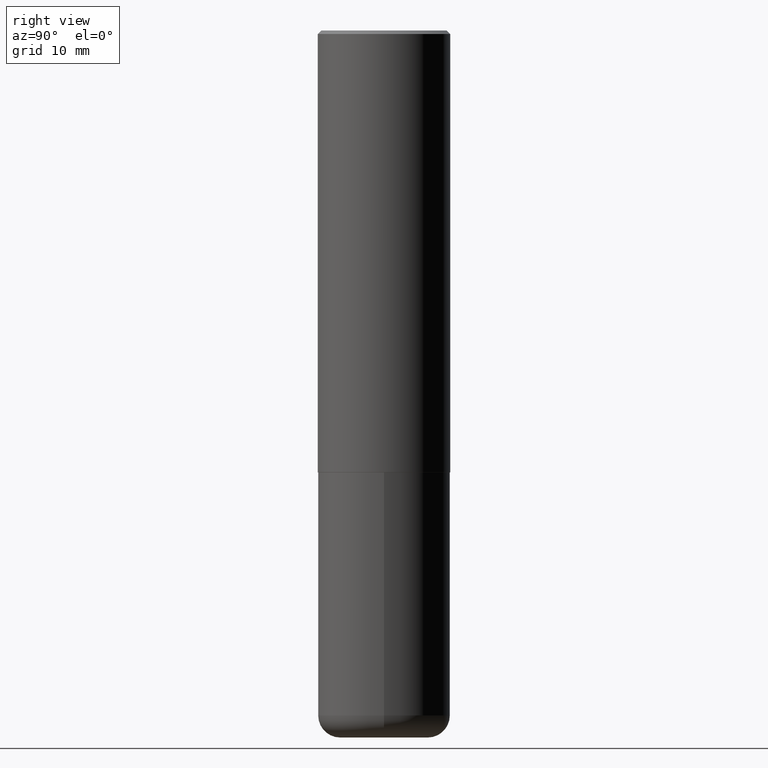
[diagram: clean part render]
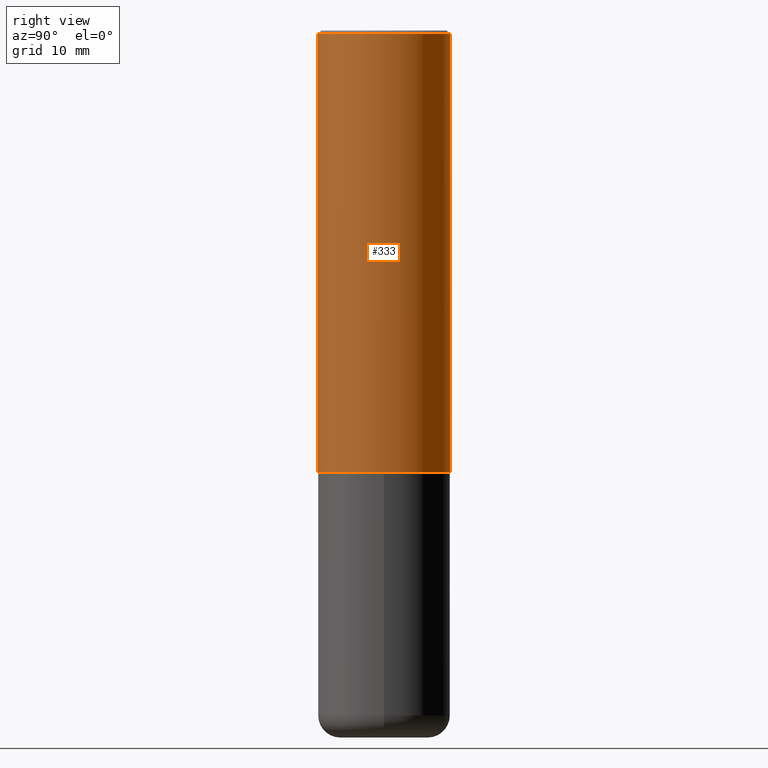
[diagram: same view with one face highlighted and labeled with its STEP entity id]
A machine part, right view. The second image highlights one B-rep face of the part: STEP entity #333.
In plain terms, the highlighted cylindrical surface (partial cylindrical patch) has radius 9.525 mm, axis along (-0, 0, 1).
Its self-contained STEP definition (entity closure, byte-faithful):
#14 = EDGE_CURVE ( 'NONE', #279, #78, #354, .T. ) ;
#23 = DIRECTION ( 'NONE',  ( -6.982962677686265922E-15, -1.000000000000000000, 3.494488891895536035E-15 ) ) ;
#33 = LINE ( 'NONE', #97, #44 ) ;
#44 = VECTOR ( 'NONE', #369, 39.37007874015748143 ) ;
#48 = VERTEX_POINT ( 'NONE', #91 ) ;
#54 = ORIENTED_EDGE ( 'NONE', *, *, #14, .T. ) ;
#61 = DIRECTION ( 'NONE',  ( -2.446218909101186334E-29, 3.490407148774155485E-15, 1.000000000000000000 ) ) ;
#62 = AXIS2_PLACEMENT_3D ( 'NONE', #180, #83, #382 ) ;
#63 = FACE_OUTER_BOUND ( 'NONE', #195, .T. ) ;
#72 = CARTESIAN_POINT ( 'NONE',  ( -2.618611004132290852E-15, -0.3750000000000090483, -2.498999999999998778 ) ) ;
#78 = VERTEX_POINT ( 'NONE', #150 ) ;
#83 = DIRECTION ( 'NONE',  ( -2.446218909101186334E-29, 3.490407148774155485E-15, 1.000000000000000000 ) ) ;
#91 = CARTESIAN_POINT ( 'NONE',  ( 2.618611004132350411E-15, 0.3749999999999999445, -0.02000000000000139513 ) ) ;
#97 = CARTESIAN_POINT ( 'NONE',  ( -2.618611004132351200E-15, -0.3750000000000001665, 1.308902680790308800E-15 ) ) ;
#103 = EDGE_CURVE ( 'NONE', #208, #48, #387, .T. ) ;
#132 = CARTESIAN_POINT ( 'NONE',  ( 2.664535259100376486E-15, 0.3750000000000001665, -1.308902680790308800E-15 ) ) ;
#137 = CARTESIAN_POINT ( 'NONE',  ( 4.892437818202393302E-31, -6.980814297548341687E-17, -0.02000000000000008715 ) ) ;
#150 = CARTESIAN_POINT ( 'NONE',  ( 2.664535259100408040E-15, 0.3749999999999915623, -2.499000000000000998 ) ) ;
#165 = LINE ( 'NONE', #132, #398 ) ;
#174 = CARTESIAN_POINT ( 'NONE',  ( -2.572686749164323547E-15, -0.3750000000000001110, -0.01999999999999877570 ) ) ;
#180 = CARTESIAN_POINT ( 'NONE',  ( 6.113101053843864340E-29, -8.722527464786612949E-15, -2.498999999999999666 ) ) ;
#194 = CARTESIAN_POINT ( 'NONE',  ( 0.000000000000000000, 0.000000000000000000, 0.000000000000000000 ) ) ;
#195 = EDGE_LOOP ( 'NONE', ( #54, #253, #377, #243 ) ) ;
#197 = AXIS2_PLACEMENT_3D ( 'NONE', #137, #61, #23 ) ;
#200 = EDGE_CURVE ( 'NONE', #78, #48, #165, .T. ) ;
#208 = VERTEX_POINT ( 'NONE', #174 ) ;
#243 = ORIENTED_EDGE ( 'NONE', *, *, #418, .F. ) ;
#253 = ORIENTED_EDGE ( 'NONE', *, *, #200, .T. ) ;
#279 = VERTEX_POINT ( 'NONE', #72 ) ;
#296 = DIRECTION ( 'NONE',  ( -6.982962677686266711E-15, -1.000000000000000000, 3.490407148774155091E-15 ) ) ;
#300 = DIRECTION ( 'NONE',  ( -2.446218909101186334E-29, 3.490407148774155485E-15, 1.000000000000000000 ) ) ;
#329 = CYLINDRICAL_SURFACE ( 'NONE', #368, 0.3750000000000001665 ) ;
#333 = ADVANCED_FACE ( 'NONE', ( #63 ), #329, .T. ) ;
#354 = CIRCLE ( 'NONE', #62, 0.3750000000000002776 ) ;
#368 = AXIS2_PLACEMENT_3D ( 'NONE', #194, #401, #296 ) ;
#369 = DIRECTION ( 'NONE',  ( -2.446218909101186334E-29, 3.490407148774155485E-15, 1.000000000000000000 ) ) ;
#377 = ORIENTED_EDGE ( 'NONE', *, *, #103, .F. ) ;
#382 = DIRECTION ( 'NONE',  ( -6.982962677686266711E-15, -1.000000000000000000, 2.913971193241878794E-15 ) ) ;
#387 = CIRCLE ( 'NONE', #197, 0.3750000000000000555 ) ;
#398 = VECTOR ( 'NONE', #300, 39.37007874015748143 ) ;
#401 = DIRECTION ( 'NONE',  ( -2.446218909101186334E-29, 3.490407148774155485E-15, 1.000000000000000000 ) ) ;
#418 = EDGE_CURVE ( 'NONE', #279, #208, #33, .T. ) ;